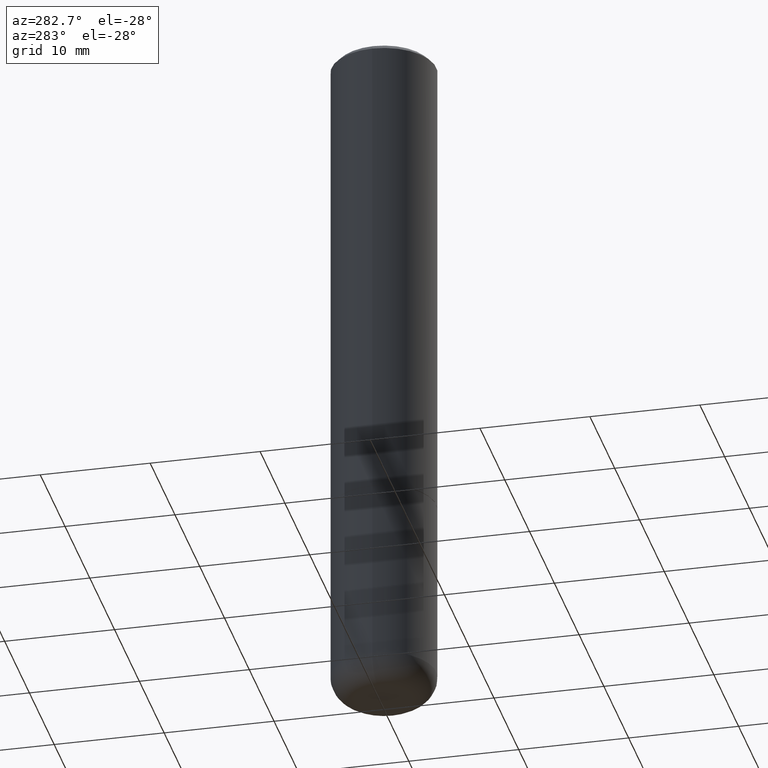
[diagram: clean part render]
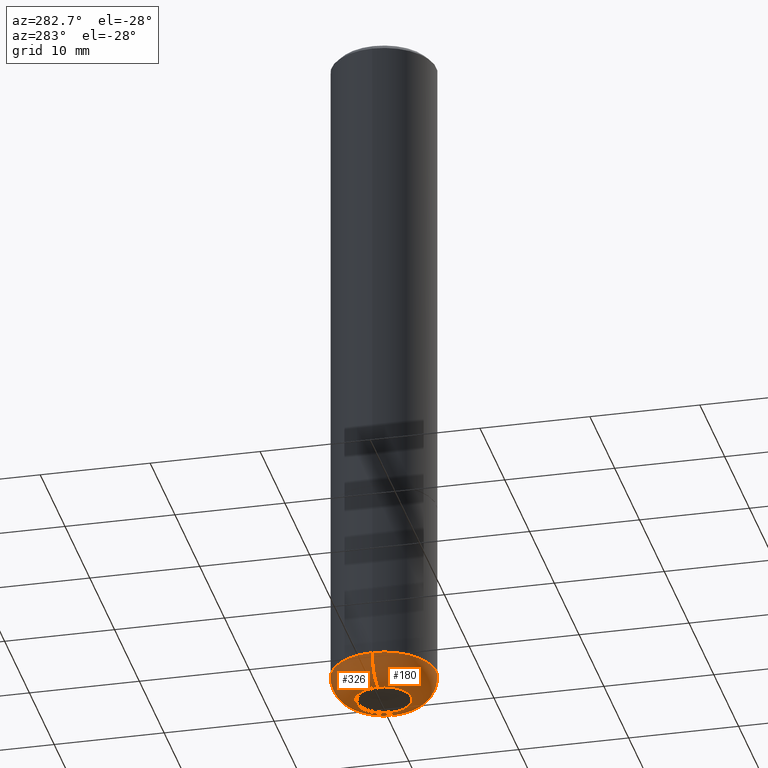
[diagram: same view with one multi-face feature highlighted, each face labeled with its STEP entity id]
A machine part, auxiliary view. The highlighted faces form ONE feature: a constant-radius fillet chain: 2 tangent blend faces with common blend radius 2.286 mm. The faces share edges in the B-rep.
Their STEP definitions:
[1] entity #326 (Torus):
#3 = VERTEX_POINT ( 'NONE', #364 ) ;
#8 = DIRECTION ( 'NONE',  ( 1.000000000000000000, -6.982962677686265922E-15, 0.000000000000000000 ) ) ;
#10 = DIRECTION ( 'NONE',  ( 7.105427357601001859E-15, 1.000000000000000000, -3.491481338843145583E-15 ) ) ;
#12 = DIRECTION ( 'NONE',  ( -2.445468806185136597E-29, 3.491481338843145583E-15, 1.000000000000000000 ) ) ;
#13 = CARTESIAN_POINT ( 'NONE',  ( -0.09750000000000001721, -7.721690859245884565E-15, -2.410000000000000142 ) ) ;
#15 = CIRCLE ( 'NONE', #208, 0.08999999999999992728 ) ;
#50 = ORIENTED_EDGE ( 'NONE', *, *, #73, .F. ) ;
#55 = CARTESIAN_POINT ( 'NONE',  ( -0.1874999999999999722, -7.082202397061793830E-15, -2.410000000000000142 ) ) ;
#58 = AXIS2_PLACEMENT_3D ( 'NONE', #13, #10, #244 ) ;
#59 = AXIS2_PLACEMENT_3D ( 'NONE', #200, #168, #8 ) ;
#61 = EDGE_CURVE ( 'NONE', #310, #161, #125, .T. ) ;
#68 = CARTESIAN_POINT ( 'NONE',  ( 5.893579822906179826E-29, -8.414470026611981678E-15, -2.410000000000000142 ) ) ;
#72 = DIRECTION ( 'NONE',  ( 1.000000000000000000, -6.982962677686261189E-15, 0.000000000000000000 ) ) ;
#73 = EDGE_CURVE ( 'NONE', #3, #161, #330, .T. ) ;
#125 = CIRCLE ( 'NONE', #58, 0.08999999999999992728 ) ;
#141 = CARTESIAN_POINT ( 'NONE',  ( -0.09750000000000003109, -7.559063288401780041E-15, -2.500000000000000000 ) ) ;
#144 = TOROIDAL_SURFACE ( 'NONE', #273, 0.09750000000000001721, 0.08999999999999992728 ) ;
#154 = EDGE_LOOP ( 'NONE', ( #407, #314, #50, #292 ) ) ;
#161 = VERTEX_POINT ( 'NONE', #55 ) ;
#168 = DIRECTION ( 'NONE',  ( -2.445468806185136597E-29, 3.491481338843145583E-15, 1.000000000000000000 ) ) ;
#174 = CARTESIAN_POINT ( 'NONE',  ( 5.893579822906179826E-29, -8.414470026611981678E-15, -2.410000000000000142 ) ) ;
#200 = CARTESIAN_POINT ( 'NONE',  ( 6.113672015462842613E-29, -8.728703347107864943E-15, -2.500000000000000000 ) ) ;
#208 = AXIS2_PLACEMENT_3D ( 'NONE', #361, #329, #296 ) ;
#230 = FACE_OUTER_BOUND ( 'NONE', #154, .T. ) ;
#244 = DIRECTION ( 'NONE',  ( -1.000000000000000000, 7.105427357600996337E-15, 0.000000000000000000 ) ) ;
#273 = AXIS2_PLACEMENT_3D ( 'NONE', #68, #12, #367 ) ;
#292 = ORIENTED_EDGE ( 'NONE', *, *, #382, .F. ) ;
#296 = DIRECTION ( 'NONE',  ( 1.000000000000000000, -6.982962677686273810E-15, 0.000000000000000000 ) ) ;
#307 = DIRECTION ( 'NONE',  ( -2.445468806185136597E-29, 3.491481338843145583E-15, 1.000000000000000000 ) ) ;
#310 = VERTEX_POINT ( 'NONE', #141 ) ;
#314 = ORIENTED_EDGE ( 'NONE', *, *, #61, .T. ) ;
#316 = VERTEX_POINT ( 'NONE', #400 ) ;
#326 = ADVANCED_FACE ( 'NONE', ( #230 ), #144, .T. ) ;
#329 = DIRECTION ( 'NONE',  ( -6.982962677686266711E-15, -1.000000000000000000, 3.491481338843145583E-15 ) ) ;
#330 = CIRCLE ( 'NONE', #346, 0.1875000000000000278 ) ;
#346 = AXIS2_PLACEMENT_3D ( 'NONE', #174, #307, #72 ) ;
#357 = EDGE_CURVE ( 'NONE', #316, #310, #384, .T. ) ;
#361 = CARTESIAN_POINT ( 'NONE',  ( 0.09750000000000001721, -9.095308887686393314E-15, -2.410000000000000142 ) ) ;
#364 = CARTESIAN_POINT ( 'NONE',  ( 0.1874999999999999722, -9.723775528678158264E-15, -2.410000000000000142 ) ) ;
#367 = DIRECTION ( 'NONE',  ( 1.000000000000000000, -6.982962677686265133E-15, 4.883557194083112340E-29 ) ) ;
#382 = EDGE_CURVE ( 'NONE', #316, #3, #15, .T. ) ;
#384 = CIRCLE ( 'NONE', #59, 0.09750000000000003109 ) ;
#400 = CARTESIAN_POINT ( 'NONE',  ( 0.09750000000000003109, -9.409542208182275000E-15, -2.500000000000000000 ) ) ;
#407 = ORIENTED_EDGE ( 'NONE', *, *, #357, .T. ) ;
[2] entity #180 (Torus):
#3 = VERTEX_POINT ( 'NONE', #364 ) ;
#10 = DIRECTION ( 'NONE',  ( 7.105427357601001859E-15, 1.000000000000000000, -3.491481338843145583E-15 ) ) ;
#13 = CARTESIAN_POINT ( 'NONE',  ( -0.09750000000000001721, -7.721690859245884565E-15, -2.410000000000000142 ) ) ;
#15 = CIRCLE ( 'NONE', #208, 0.08999999999999992728 ) ;
#19 = DIRECTION ( 'NONE',  ( -2.445468806185136597E-29, 3.491481338843145583E-15, 1.000000000000000000 ) ) ;
#49 = AXIS2_PLACEMENT_3D ( 'NONE', #388, #291, #258 ) ;
#53 = FACE_OUTER_BOUND ( 'NONE', #194, .T. ) ;
#55 = CARTESIAN_POINT ( 'NONE',  ( -0.1874999999999999722, -7.082202397061793830E-15, -2.410000000000000142 ) ) ;
#58 = AXIS2_PLACEMENT_3D ( 'NONE', #13, #10, #244 ) ;
#61 = EDGE_CURVE ( 'NONE', #310, #161, #125, .T. ) ;
#125 = CIRCLE ( 'NONE', #58, 0.08999999999999992728 ) ;
#141 = CARTESIAN_POINT ( 'NONE',  ( -0.09750000000000003109, -7.559063288401780041E-15, -2.500000000000000000 ) ) ;
#151 = DIRECTION ( 'NONE',  ( 1.000000000000000000, -6.982962677686265133E-15, 4.883557194083112340E-29 ) ) ;
#161 = VERTEX_POINT ( 'NONE', #55 ) ;
#173 = CARTESIAN_POINT ( 'NONE',  ( 6.113672015462842613E-29, -8.728703347107864943E-15, -2.500000000000000000 ) ) ;
#180 = ADVANCED_FACE ( 'NONE', ( #53 ), #231, .T. ) ;
#183 = CIRCLE ( 'NONE', #49, 0.1875000000000000278 ) ;
#188 = EDGE_CURVE ( 'NONE', #161, #3, #183, .T. ) ;
#194 = EDGE_LOOP ( 'NONE', ( #285, #392, #203, #220 ) ) ;
#199 = CIRCLE ( 'NONE', #369, 0.09750000000000003109 ) ;
#203 = ORIENTED_EDGE ( 'NONE', *, *, #382, .T. ) ;
#208 = AXIS2_PLACEMENT_3D ( 'NONE', #361, #329, #296 ) ;
#220 = ORIENTED_EDGE ( 'NONE', *, *, #188, .F. ) ;
#231 = TOROIDAL_SURFACE ( 'NONE', #351, 0.09750000000000001721, 0.08999999999999992728 ) ;
#241 = DIRECTION ( 'NONE',  ( 1.000000000000000000, -6.982962677686265922E-15, 0.000000000000000000 ) ) ;
#244 = DIRECTION ( 'NONE',  ( -1.000000000000000000, 7.105427357600996337E-15, 0.000000000000000000 ) ) ;
#247 = CARTESIAN_POINT ( 'NONE',  ( 5.893579822906179826E-29, -8.414470026611981678E-15, -2.410000000000000142 ) ) ;
#258 = DIRECTION ( 'NONE',  ( 1.000000000000000000, -6.982962677686261189E-15, 0.000000000000000000 ) ) ;
#285 = ORIENTED_EDGE ( 'NONE', *, *, #61, .F. ) ;
#291 = DIRECTION ( 'NONE',  ( -2.445468806185136597E-29, 3.491481338843145583E-15, 1.000000000000000000 ) ) ;
#296 = DIRECTION ( 'NONE',  ( 1.000000000000000000, -6.982962677686273810E-15, 0.000000000000000000 ) ) ;
#306 = DIRECTION ( 'NONE',  ( -2.445468806185136597E-29, 3.491481338843145583E-15, 1.000000000000000000 ) ) ;
#310 = VERTEX_POINT ( 'NONE', #141 ) ;
#316 = VERTEX_POINT ( 'NONE', #400 ) ;
#329 = DIRECTION ( 'NONE',  ( -6.982962677686266711E-15, -1.000000000000000000, 3.491481338843145583E-15 ) ) ;
#351 = AXIS2_PLACEMENT_3D ( 'NONE', #247, #19, #151 ) ;
#361 = CARTESIAN_POINT ( 'NONE',  ( 0.09750000000000001721, -9.095308887686393314E-15, -2.410000000000000142 ) ) ;
#364 = CARTESIAN_POINT ( 'NONE',  ( 0.1874999999999999722, -9.723775528678158264E-15, -2.410000000000000142 ) ) ;
#369 = AXIS2_PLACEMENT_3D ( 'NONE', #173, #306, #241 ) ;
#380 = EDGE_CURVE ( 'NONE', #310, #316, #199, .T. ) ;
#382 = EDGE_CURVE ( 'NONE', #316, #3, #15, .T. ) ;
#388 = CARTESIAN_POINT ( 'NONE',  ( 5.893579822906179826E-29, -8.414470026611981678E-15, -2.410000000000000142 ) ) ;
#392 = ORIENTED_EDGE ( 'NONE', *, *, #380, .T. ) ;
#400 = CARTESIAN_POINT ( 'NONE',  ( 0.09750000000000003109, -9.409542208182275000E-15, -2.500000000000000000 ) ) ;